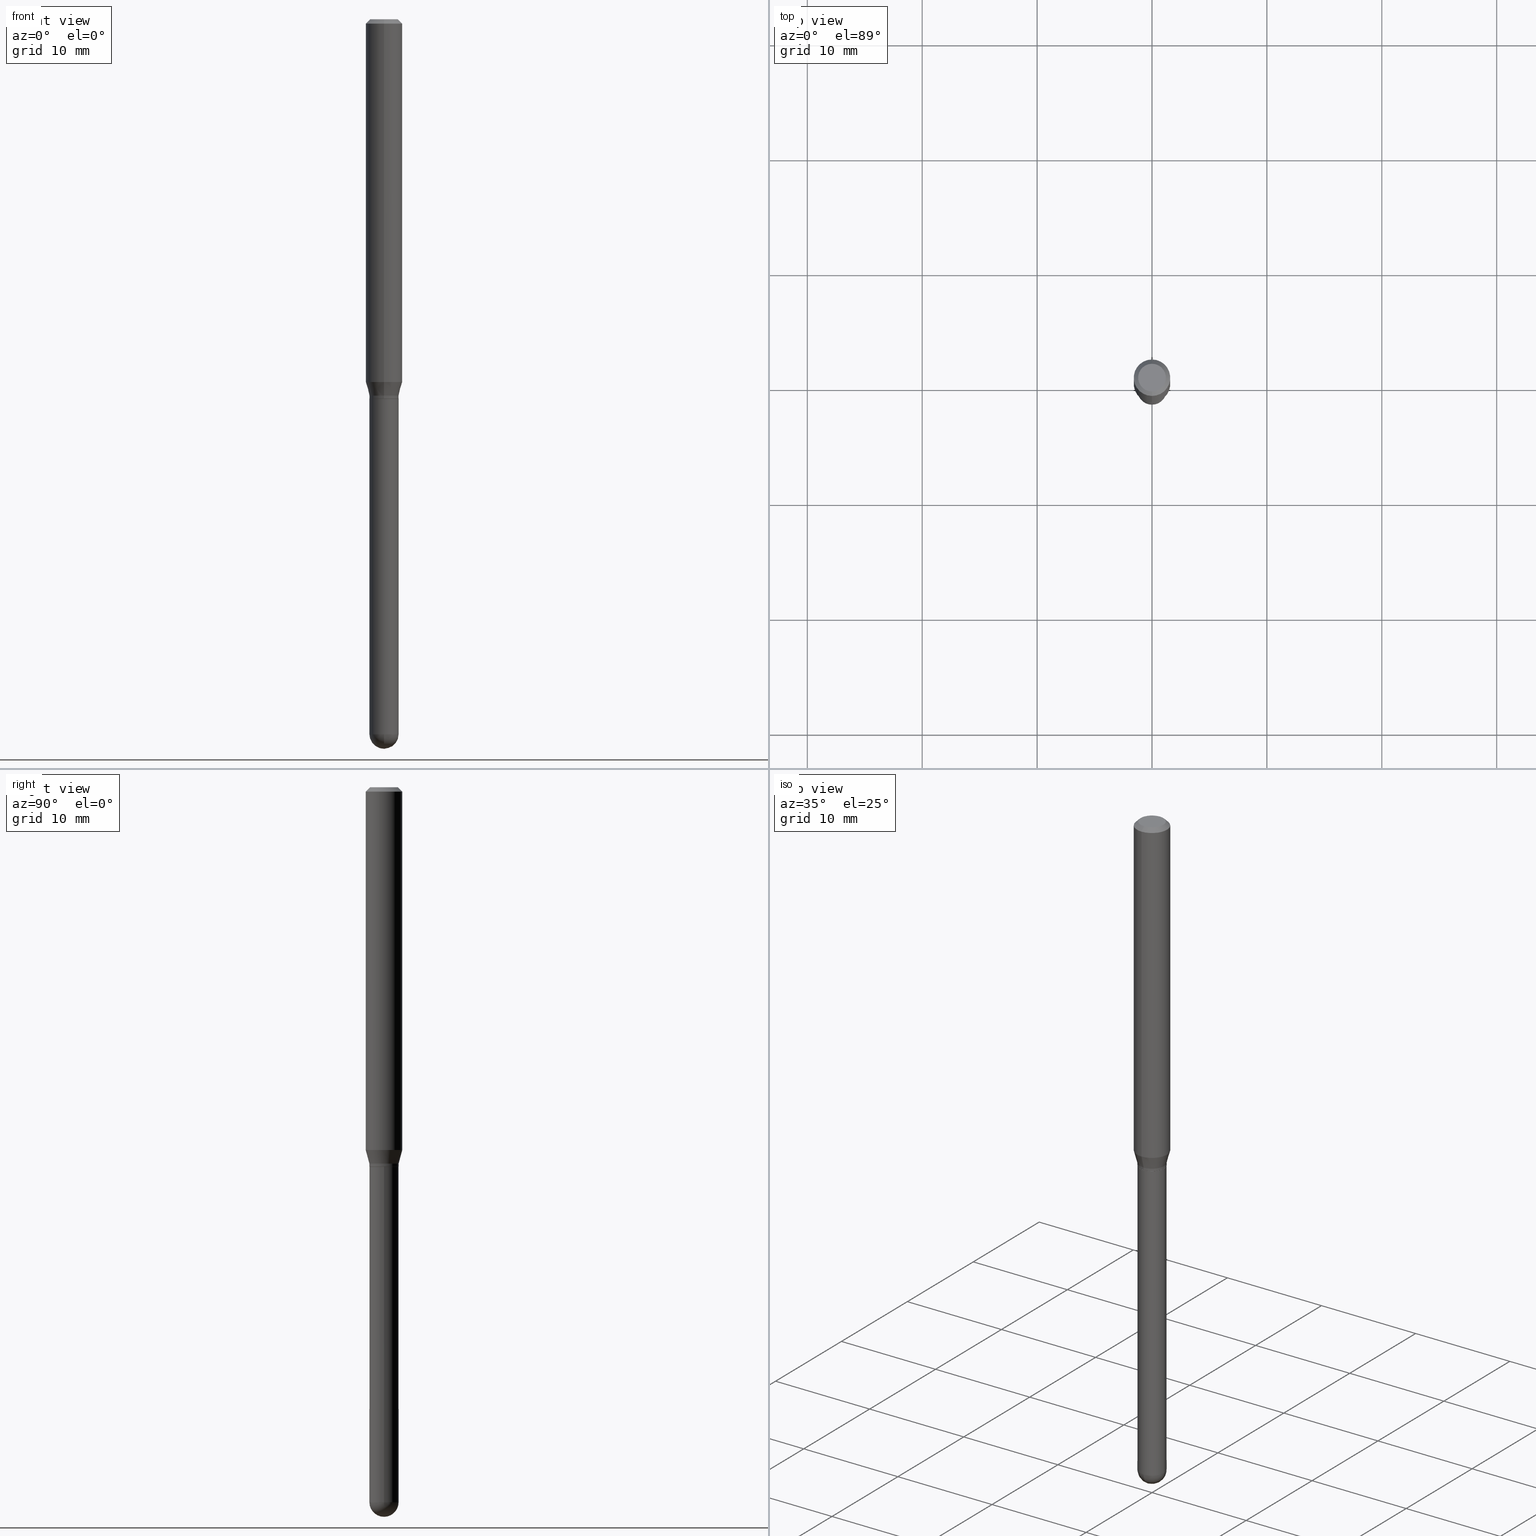
[diagram: canonical four-view strip — front | top / right | iso, engineering-drawing reading convention]
A machine part, canonical four-view strip (front | top / right | iso — engineering-drawing reading convention). The complete STEP part file that produces these views, byte-faithful:
ISO-10303-21;
HEADER;
FILE_DESCRIPTION (( 'STEP AP203' ),
    '1' );
FILE_NAME ('01578.STEP',
    '2024-03-07T19:41:37',
    ( '' ),
    ( '' ),
    'SwSTEP 2.0',
    'SolidWorks 2023',
    '' );
FILE_SCHEMA (( 'CONFIG_CONTROL_DESIGN' ));
ENDSEC;

DATA;
#1 = ADVANCED_FACE ( 'NONE', ( #176 ), #250, .T. ) ;
#2 = CARTESIAN_POINT ( 'NONE',  ( -3.491481338843128425E-16, -0.04999999999999992645, 1.745687588716103745E-16 ) ) ;
#3 = EDGE_LOOP ( 'NONE', ( #430, #246, #196, #200, #5 ) ) ;
#4 = CARTESIAN_POINT ( 'NONE',  ( 3.840629472727447874E-16, 0.04749999999999999362, -1.747056831868805136E-16 ) ) ;
#5 = ORIENTED_EDGE ( 'NONE', *, *, #476, .F. ) ;
#6 = AXIS2_PLACEMENT_3D ( 'NONE', #162, #241, #195 ) ;
#7 = LINE ( 'NONE', #128, #351 ) ;
#8 = VERTEX_POINT ( 'NONE', #127 ) ;
#9 = VECTOR ( 'NONE', #153, 39.37007874015748143 ) ;
#10 = CALENDAR_DATE ( 2024, 7, 3 ) ;
#11 = EDGE_CURVE ( 'NONE', #123, #112, #180, .T. ) ;
#12 = PERSON_AND_ORGANIZATION ( #47, #177 ) ;
#13 = DIRECTION ( 'NONE',  ( 1.000000000000000000, -6.982962677686265922E-15, 4.876176775795936353E-29 ) ) ;
#14 = ORIENTED_EDGE ( 'NONE', *, *, #450, .F. ) ;
#15 = DATE_AND_TIME ( #374, #415 ) ;
#16 = DIRECTION ( 'NONE',  ( -2.445468806185136597E-29, 3.491481338843145583E-15, 1.000000000000000000 ) ) ;
#17 = PERSON_AND_ORGANIZATION ( #47, #177 ) ;
#18 = DIRECTION ( 'NONE',  ( -6.982962677686266711E-15, -1.000000000000000000, 3.491375177432212419E-15 ) ) ;
#19 = DIRECTION ( 'NONE',  ( 6.982962677686265922E-15, 1.000000000000000000, -3.483106191921935554E-15 ) ) ;
#20 = ORIENTED_EDGE ( 'NONE', *, *, #477, .F. ) ;
#21 = EDGE_CURVE ( 'NONE', #209, #169, #505, .T. ) ;
#22 = EDGE_CURVE ( 'NONE', #109, #137, #286, .T. ) ;
#23 = DIRECTION ( 'NONE',  ( -2.445542938302172429E-29, 3.491375177432212419E-15, 1.000000000000000000 ) ) ;
#24 = CONICAL_SURFACE ( 'NONE', #331, 0.06250000000000000000, 0.7853981633974483900 ) ;
#25 = DIRECTION ( 'NONE',  ( 1.839019923739598738E-15, 0.2588190451025247363, 0.9659258262890673130 ) ) ;
#26 = DIRECTION ( 'NONE',  ( 2.445542938302172429E-29, -3.491375177432212419E-15, -1.000000000000000000 ) ) ;
#27 = CARTESIAN_POINT ( 'NONE',  ( 3.552713678800495210E-16, 0.04999999999999992645, -1.745687588716103745E-16 ) ) ;
#28 = EDGE_CURVE ( 'NONE', #428, #8, #486, .T. ) ;
#29 = CLOSED_SHELL ( 'NONE', ( #193, #491, #252, #167, #154, #248, #60, #405, #379, #272, #178, #100 ) ) ;
#30 = AXIS2_PLACEMENT_3D ( 'NONE', #391, #393, #313 ) ;
#31 = DIRECTION ( 'NONE',  ( 2.445542938302172429E-29, -3.491375177432212419E-15, -1.000000000000000000 ) ) ;
#32 = ORIENTED_EDGE ( 'NONE', *, *, #464, .T. ) ;
#33 = DIRECTION ( 'NONE',  ( -2.445468806185136597E-29, 3.491481338843145583E-15, 1.000000000000000000 ) ) ;
#34 = CC_DESIGN_PERSON_AND_ORGANIZATION_ASSIGNMENT ( #292, #136, ( #83 ) ) ;
#35 = ORIENTED_EDGE ( 'NONE', *, *, #157, .F. ) ;
#36 = LINE ( 'NONE', #74, #238 ) ;
#37 = ORIENTED_EDGE ( 'NONE', *, *, #458, .T. ) ;
#38 = CIRCLE ( 'NONE', #346, 0.05000000000000000971 ) ;
#39 = EDGE_CURVE ( 'NONE', #357, #280, #395, .T. ) ;
#40 = DIRECTION ( 'NONE',  ( -6.982962677686265922E-15, -1.000000000000000000, 4.370956789862821150E-15 ) ) ;
#41 = VERTEX_POINT ( 'NONE', #85 ) ;
#42 = APPROVAL_STATUS ( 'not_yet_approved' ) ;
#43 = ORIENTED_EDGE ( 'NONE', *, *, #22, .F. ) ;
#44 = APPROVAL_PERSON_ORGANIZATION ( #17, #223, #219 ) ;
#45 = MANIFOLD_SOLID_BREP ( 'Body-Move/Copy2[1]', #494 ) ;
#46 = PERSON_AND_ORGANIZATION_ROLE ( 'design_supplier' ) ;
#47 = PERSON ( 'UNSPECIFIED', 'UNSPECIFIED', 'UNSPECIFIED', ('UNSPECIFIED'), ('UNSPECIFIED'), ('UNSPECIFIED') ) ;
#48 = DIRECTION ( 'NONE',  ( 2.438088387897960049E-29, -3.491481338843145188E-15, -1.000000000000000000 ) ) ;
#49 = AXIS2_PLACEMENT_3D ( 'NONE', #350, #23, #229 ) ;
#50 = COORDINATED_UNIVERSAL_TIME_OFFSET ( 5, 0, .BEHIND. ) ;
#51 = EDGE_LOOP ( 'NONE', ( #20, #419, #473, #404 ) ) ;
#52 = COORDINATED_UNIVERSAL_TIME_OFFSET ( 5, 0, .BEHIND. ) ;
#53 = CARTESIAN_POINT ( 'NONE',  ( -3.456566525454384288E-16, -0.04950000000000454731, -1.299999999999999822 ) ) ;
#54 = CC_DESIGN_PERSON_AND_ORGANIZATION_ASSIGNMENT ( #440, #46, ( #336 ) ) ;
#55 = APPROVAL_ROLE ( '' ) ;
#56 = CARTESIAN_POINT ( 'NONE',  ( 5.987122743707687383E-29, -8.560252514161443770E-15, -2.450000000000000178 ) ) ;
#57 = CARTESIAN_POINT ( 'NONE',  ( 3.179205819792823625E-29, -4.538787730661875751E-15, -1.300000000000000044 ) ) ;
#58 = DIRECTION ( 'NONE',  ( -2.445468806185136597E-29, 3.491481338843145583E-15, 1.000000000000000000 ) ) ;
#59 = EDGE_CURVE ( 'NONE', #280, #357, #194, .T. ) ;
#60 = ADVANCED_FACE ( 'NONE', ( #92 ), #411, .T. ) ;
#61 = FACE_OUTER_BOUND ( 'NONE', #314, .T. ) ;
#62 = ORIENTED_EDGE ( 'NONE', *, *, #226, .T. ) ;
#63 = DATE_AND_TIME ( #454, #165 ) ;
#64 = CARTESIAN_POINT ( 'NONE',  ( 3.668314407453261236E-31, -5.237062766148322204E-17, -0.01500000000000000812 ) ) ;
#65 = CONICAL_SURFACE ( 'NONE', #203, 0.06250000000000000000, 0.7853981633974483900 ) ;
#66 = DIRECTION ( 'NONE',  ( -6.982962677686265922E-15, -1.000000000000000000, 3.491375177432212419E-15 ) ) ;
#67 = DIRECTION ( 'NONE',  ( -1.807323732225328562E-15, -0.2588190451025179639, 0.9659258262890690894 ) ) ;
#68 = AXIS2_PLACEMENT_3D ( 'NONE', #372, #377, #254 ) ;
#69 = ORIENTED_EDGE ( 'NONE', *, *, #76, .T. ) ;
#70 = CARTESIAN_POINT ( 'NONE',  ( 3.154750390409803087E-29, -4.503873978887554297E-15, -1.290000000000000258 ) ) ;
#71 = ORIENTED_EDGE ( 'NONE', *, *, #59, .T. ) ;
#72 = CARTESIAN_POINT ( 'NONE',  ( 5.987122743707687383E-29, -8.560252514161443770E-15, -2.450000000000000178 ) ) ;
#73 = EDGE_LOOP ( 'NONE', ( #230, #198, #367, #345 ) ) ;
#74 = CARTESIAN_POINT ( 'NONE',  ( 3.517186542012813602E-16, 0.04949999999999546429, -1.300000000000000266 ) ) ;
#75 = ORIENTED_EDGE ( 'NONE', *, *, #281, .T. ) ;
#76 = EDGE_CURVE ( 'NONE', #41, #107, #294, .T. ) ;
#77 = APPLICATION_CONTEXT ( 'configuration controlled 3d designs of mechanical parts and assemblies' ) ;
#78 = DIRECTION ( 'NONE',  ( 1.000000000000000000, -6.982962677686274599E-15, 0.000000000000000000 ) ) ;
#79 = EDGE_LOOP ( 'NONE', ( #512, #71 ) ) ;
#80 = CONICAL_SURFACE ( 'NONE', #30, 0.04999999999999965583, 0.2617993877991500740 ) ;
#81 = CARTESIAN_POINT ( 'NONE',  ( 5.987122743707687383E-29, -8.560252514161443770E-15, -2.450000000000000178 ) ) ;
#82 = ORIENTED_EDGE ( 'NONE', *, *, #174, .T. ) ;
#83 = PRODUCT_DEFINITION ( 'UNKNOWN', '', #336, #131 ) ;
#84 = DIRECTION ( 'NONE',  ( 1.000000000000000000, -6.982962677686265922E-15, 4.876176775795936353E-29 ) ) ;
#85 = CARTESIAN_POINT ( 'NONE',  ( 4.440892098500930859E-16, 0.06249999999999567707, -1.243349364905388388 ) ) ;
#86 = AXIS2_PLACEMENT_3D ( 'NONE', #474, #436, #78 ) ;
#87 = LINE ( 'NONE', #337, #231 ) ;
#88 = ADVANCED_FACE ( 'NONE', ( #373 ), #341, .T. ) ;
#89 = AXIS2_PLACEMENT_3D ( 'NONE', #309, #144, #388 ) ;
#90 = DIRECTION ( 'NONE',  ( -2.445468806185136597E-29, 3.491481338843145583E-15, 1.000000000000000000 ) ) ;
#91 = PRODUCT ( '01578', '01578', '', ( #482 ) ) ;
#92 = FACE_OUTER_BOUND ( 'NONE', #385, .T. ) ;
#93 = CARTESIAN_POINT ( 'NONE',  ( 3.491481338843450872E-16, 0.04999999999999546474, -1.300000000000000711 ) ) ;
#94 = DATE_TIME_ROLE ( 'creation_date' ) ;
#95 = DIRECTION ( 'NONE',  ( -6.982962677686266711E-15, -1.000000000000000000, 3.491375177432212419E-15 ) ) ;
#96 = VECTOR ( 'NONE', #152, 39.37007874015748143 ) ;
#97 = CARTESIAN_POINT ( 'NONE',  ( 3.179205819792823625E-29, -4.538787730661875751E-15, -1.300000000000000044 ) ) ;
#98 = ORIENTED_EDGE ( 'NONE', *, *, #11, .T. ) ;
#99 = CARTESIAN_POINT ( 'NONE',  ( -4.364351673553610517E-16, -0.06250000000000431599, -1.243349364905387722 ) ) ;
#100 = ADVANCED_FACE ( 'NONE', ( #417 ), #257, .T. ) ;
#101 = ORIENTED_EDGE ( 'NONE', *, *, #28, .F. ) ;
#102 = LOCAL_TIME ( 14, 41, 37.00000000000000000, #301 ) ;
#103 = DIRECTION ( 'NONE',  ( -7.105427357601001070E-15, -1.000000000000000000, 0.000000000000000000 ) ) ;
#104 = CARTESIAN_POINT ( 'NONE',  ( -4.364351673553916201E-16, -0.06250000000000000000, 2.182109485895132762E-16 ) ) ;
#105 = APPROVAL ( #42, 'UNSPECIFIED' ) ;
#106 = AXIS2_PLACEMENT_3D ( 'NONE', #57, #179, #409 ) ;
#107 = VERTEX_POINT ( 'NONE', #247 ) ;
#108 = LINE ( 'NONE', #317, #487 ) ;
#109 = VERTEX_POINT ( 'NONE', #53 ) ;
#110 = CARTESIAN_POINT ( 'NONE',  ( 3.668314407453261236E-31, -5.237062766148322204E-17, -0.01500000000000000812 ) ) ;
#111 = CIRCLE ( 'NONE', #271, 0.04999999999999999584 ) ;
#112 = VERTEX_POINT ( 'NONE', #182 ) ;
#113 = EDGE_CURVE ( 'NONE', #234, #268, #87, .T. ) ;
#114 = SPHERICAL_SURFACE ( 'NONE', #311, 0.05000000000000000971 ) ;
#115 = ORIENTED_EDGE ( 'NONE', *, *, #149, .T. ) ;
#116 = AXIS2_PLACEMENT_3D ( 'NONE', #72, #199, #276 ) ;
#117 = DIRECTION ( 'NONE',  ( -2.445542938302172429E-29, 3.491375177432212419E-15, 1.000000000000000000 ) ) ;
#118 = ORIENTED_EDGE ( 'NONE', *, *, #298, .F. ) ;
#119 = CARTESIAN_POINT ( 'NONE',  ( 3.040664259186862585E-29, -4.340999109506777634E-15, -1.243349364905387944 ) ) ;
#120 = ORIENTED_EDGE ( 'NONE', *, *, #125, .F. ) ;
#121 =( GEOMETRIC_REPRESENTATION_CONTEXT ( 3 ) GLOBAL_UNCERTAINTY_ASSIGNED_CONTEXT ( ( #258 ) ) GLOBAL_UNIT_ASSIGNED_CONTEXT ( ( #335, #448, #139 ) ) REPRESENTATION_CONTEXT ( 'NONE', 'WORKASPACE' ) );
#122 = CARTESIAN_POINT ( 'NONE',  ( 5.991398575153583765E-29, -8.554129280165706697E-15, -2.449999999999999734 ) ) ;
#123 = VERTEX_POINT ( 'NONE', #293 ) ;
#124 = VECTOR ( 'NONE', #212, 39.37007874015748143 ) ;
#125 = EDGE_CURVE ( 'NONE', #137, #109, #361, .T. ) ;
#126 = DATE_AND_TIME ( #299, #191 ) ;
#127 = CARTESIAN_POINT ( 'NONE',  ( -3.552713678799901099E-16, -0.05000000000000856537, -2.449999999999999734 ) ) ;
#128 = CARTESIAN_POINT ( 'NONE',  ( 4.364351673553919652E-16, 0.06249999999999995143, -0.01500000000000022669 ) ) ;
#129 = CARTESIAN_POINT ( 'NONE',  ( 3.491481338843731903E-16, 0.04999999999999144018, -2.450000000000000178 ) ) ;
#130 = APPROVAL ( #408, 'UNSPECIFIED' ) ;
#131 = DESIGN_CONTEXT ( 'detailed design', #77, 'design' ) ;
#132 = PERSON_AND_ORGANIZATION_ROLE ( 'classification_officer' ) ;
#133 = DIRECTION ( 'NONE',  ( -6.982962677686265922E-15, -1.000000000000000000, 5.463695987328504349E-15 ) ) ;
#134 = PRODUCT_RELATED_PRODUCT_CATEGORY ( 'detail', '', ( #91 ) ) ;
#135 = AXIS2_PLACEMENT_3D ( 'NONE', #511, #235, #155 ) ;
#136 = PERSON_AND_ORGANIZATION_ROLE ( 'creator' ) ;
#137 = VERTEX_POINT ( 'NONE', #338 ) ;
#138 = ADVANCED_FACE ( 'NONE', ( #488 ), #381, .F. ) ;
#139 =( NAMED_UNIT ( * ) SI_UNIT ( $, .STERADIAN. ) SOLID_ANGLE_UNIT ( ) );
#140 = CARTESIAN_POINT ( 'NONE',  ( 2.168062406762227384E-46, -3.095230572949476601E-32, -8.865362258850433264E-18 ) ) ;
#141 = CC_DESIGN_APPROVAL ( #130, ( #83 ) ) ;
#142 = DIRECTION ( 'NONE',  ( -2.445542938302172429E-29, 3.491375177432212419E-15, 1.000000000000000000 ) ) ;
#143 = CIRCLE ( 'NONE', #116, 0.05000000000000000971 ) ;
#144 = DIRECTION ( 'NONE',  ( -2.445542938302171869E-29, 3.491375177432212419E-15, 1.000000000000000000 ) ) ;
#145 = VERTEX_POINT ( 'NONE', #129 ) ;
#146 = CARTESIAN_POINT ( 'NONE',  ( 5.987122743707687383E-29, -8.560252514161443770E-15, -2.450000000000000178 ) ) ;
#147 = CC_DESIGN_SECURITY_CLASSIFICATION ( #228, ( #336 ) ) ;
#148 = DIRECTION ( 'NONE',  ( 1.000000000000000000, -6.982962677686255667E-15, 0.000000000000000000 ) ) ;
#149 = EDGE_CURVE ( 'NONE', #280, #402, #424, .T. ) ;
#150 = ORIENTED_EDGE ( 'NONE', *, *, #218, .T. ) ;
#151 = DATE_TIME_ROLE ( 'classification_date' ) ;
#152 = DIRECTION ( 'NONE',  ( -2.445542938302172429E-29, 3.491375177432212419E-15, 1.000000000000000000 ) ) ;
#153 = DIRECTION ( 'NONE',  ( -2.445468806185136877E-29, 3.491481338843145188E-15, 1.000000000000000000 ) ) ;
#154 = ADVANCED_FACE ( 'NONE', ( #465 ), #316, .T. ) ;
#155 = DIRECTION ( 'NONE',  ( 6.982962677686265922E-15, 1.000000000000000000, -3.491375177432212419E-15 ) ) ;
#156 = ORIENTED_EDGE ( 'NONE', *, *, #240, .F. ) ;
#157 = EDGE_CURVE ( 'NONE', #160, #402, #183, .T. ) ;
#158 = DIRECTION ( 'NONE',  ( -2.445542938302172429E-29, 3.491375177432212419E-15, 1.000000000000000000 ) ) ;
#159 = AXIS2_PLACEMENT_3D ( 'NONE', #380, #16, #13 ) ;
#160 = VERTEX_POINT ( 'NONE', #99 ) ;
#161 = CIRCLE ( 'NONE', #429, 0.06250000000000000000 ) ;
#162 = CARTESIAN_POINT ( 'NONE',  ( 3.179205819792823625E-29, -4.538787730661875751E-15, -1.300000000000000044 ) ) ;
#163 = ORIENTED_EDGE ( 'NONE', *, *, #464, .F. ) ;
#164 = PLANE ( 'NONE',  #135 ) ;
#165 = LOCAL_TIME ( 14, 41, 37.00000000000000000, #423 ) ;
#166 = ORIENTED_EDGE ( 'NONE', *, *, #305, .T. ) ;
#167 = ADVANCED_FACE ( 'NONE', ( #192 ), #267, .T. ) ;
#168 = CARTESIAN_POINT ( 'NONE',  ( 0.000000000000000000, 0.000000000000000000, 0.000000000000000000 ) ) ;
#169 = VERTEX_POINT ( 'NONE', #302 ) ;
#170 = AXIS2_PLACEMENT_3D ( 'NONE', #443, #296, #376 ) ;
#171 = CONICAL_SURFACE ( 'NONE', #431, 0.04950000000000000233, 0.7853981633980202659 ) ;
#172 = DATE_AND_TIME ( #10, #383 ) ;
#173 = DIRECTION ( 'NONE',  ( -2.445542938302172429E-29, 3.491375177432212419E-15, 1.000000000000000000 ) ) ;
#174 = EDGE_CURVE ( 'NONE', #112, #160, #420, .T. ) ;
#175 = APPROVAL_ROLE ( '' ) ;
#176 = FACE_OUTER_BOUND ( 'NONE', #467, .T. ) ;
#177 = ORGANIZATION ( 'UNSPECIFIED', 'UNSPECIFIED', '' ) ;
#178 = ADVANCED_FACE ( 'NONE', ( #451 ), #171, .T. ) ;
#179 = DIRECTION ( 'NONE',  ( -2.445542938302172429E-29, 3.491375177432212419E-15, 1.000000000000000000 ) ) ;
#180 = CIRCLE ( 'NONE', #315, 0.04999999999999965583 ) ;
#181 = APPLICATION_PROTOCOL_DEFINITION ( 'international standard', 'config_control_design', 1994, #291 ) ;
#182 = CARTESIAN_POINT ( 'NONE',  ( -3.491481338842793159E-16, -0.05000000000000415917, -1.289999999999999813 ) ) ;
#183 = LINE ( 'NONE', #104, #96 ) ;
#184 = EDGE_CURVE ( 'NONE', #109, #169, #384, .T. ) ;
#185 = APPROVAL_DATE_TIME ( #349, #223 ) ;
#186 = CARTESIAN_POINT ( 'NONE',  ( 0.05000000000000000278, -4.888073874380404052E-15, -1.300000000000000266 ) ) ;
#187 = EDGE_LOOP ( 'NONE', ( #43, #120 ) ) ;
#188 = AXIS2_PLACEMENT_3D ( 'NONE', #499, #189, #227 ) ;
#189 = DIRECTION ( 'NONE',  ( -2.445542938302172429E-29, 3.491375177432212419E-15, 1.000000000000000000 ) ) ;
#190 = CARTESIAN_POINT ( 'NONE',  ( -0.05000000000000000278, -6.191256142450848298E-15, -1.300000000000000266 ) ) ;
#191 = LOCAL_TIME ( 14, 41, 37.00000000000000000, #489 ) ;
#192 = FACE_OUTER_BOUND ( 'NONE', #327, .T. ) ;
#193 = ADVANCED_FACE ( 'NONE', ( #61 ), #352, .T. ) ;
#194 = CIRCLE ( 'NONE', #303, 0.04749999999999999362 ) ;
#195 = DIRECTION ( 'NONE',  ( -6.982962677686265922E-15, -1.000000000000000000, 5.518884835685379881E-15 ) ) ;
#196 = ORIENTED_EDGE ( 'NONE', *, *, #240, .T. ) ;
#197 = DIRECTION ( 'NONE',  ( 6.982962677686265133E-15, 1.000000000000000000, -5.463695987328524859E-15 ) ) ;
#198 = ORIENTED_EDGE ( 'NONE', *, *, #477, .T. ) ;
#199 = DIRECTION ( 'NONE',  ( 1.000000000000000000, -6.982962677686265922E-15, 4.883557194083112340E-29 ) ) ;
#200 = ORIENTED_EDGE ( 'NONE', *, *, #113, .T. ) ;
#201 = FACE_OUTER_BOUND ( 'NONE', #73, .T. ) ;
#202 = EDGE_LOOP ( 'NONE', ( #500, #115, #270, #480 ) ) ;
#203 = AXIS2_PLACEMENT_3D ( 'NONE', #468, #31, #273 ) ;
#204 = DIRECTION ( 'NONE',  ( -6.982962677686265922E-15, -1.000000000000000000, 3.483106191921935554E-15 ) ) ;
#205 = CC_DESIGN_PERSON_AND_ORGANIZATION_ASSIGNMENT ( #256, #444, ( #91 ) ) ;
#206 = ORIENTED_EDGE ( 'NONE', *, *, #368, .F. ) ;
#207 = APPROVAL_DATE_TIME ( #172, #105 ) ;
#208 = AXIS2_PLACEMENT_3D ( 'NONE', #168, #90, #84 ) ;
#209 = VERTEX_POINT ( 'NONE', #261 ) ;
#210 = DIRECTION ( 'NONE',  ( -6.982962677686267499E-15, -1.000000000000000000, 3.491375177432212814E-15 ) ) ;
#211 = VECTOR ( 'NONE', #220, 39.37007874015748854 ) ;
#212 = DIRECTION ( 'NONE',  ( -2.445542938302172429E-29, 3.491375177432212419E-15, 1.000000000000000000 ) ) ;
#213 = LENGTH_MEASURE_WITH_UNIT ( LENGTH_MEASURE( 0.02539999999999999897 ), #366 );
#214 = DIRECTION ( 'NONE',  ( -2.445542938302172429E-29, 3.491375177432212419E-15, 1.000000000000000000 ) ) ;
#215 = CARTESIAN_POINT ( 'NONE',  ( 6.111534099739893301E-29, -8.731764964105732690E-15, -2.500000000000000000 ) ) ;
#216 = DIRECTION ( 'NONE',  ( -2.445542938302172429E-29, 3.491375177432212419E-15, 1.000000000000000000 ) ) ;
#217 = DIRECTION ( 'NONE',  ( -1.000000000000000000, 6.982962677686265133E-15, -4.883557194083112340E-29 ) ) ;
#218 = EDGE_CURVE ( 'NONE', #123, #41, #108, .T. ) ;
#219 = APPROVAL_ROLE ( '' ) ;
#220 = DIRECTION ( 'NONE',  ( -4.937700262167370586E-15, -0.7071067811869493624, 0.7071067811861454500 ) ) ;
#221 = CARTESIAN_POINT ( 'NONE',  ( 5.991398575153583765E-29, -8.554129280165706697E-15, -2.449999999999999734 ) ) ;
#222 = VERTEX_POINT ( 'NONE', #190 ) ;
#223 = APPROVAL ( #503, 'UNSPECIFIED' ) ;
#224 = AXIS2_PLACEMENT_3D ( 'NONE', #110, #282, #321 ) ;
#225 = DIRECTION ( 'NONE',  ( -2.445542938302172429E-29, 3.491375177432212419E-15, 1.000000000000000000 ) ) ;
#226 = EDGE_CURVE ( 'NONE', #169, #209, #496, .T. ) ;
#227 = DIRECTION ( 'NONE',  ( -6.982962677686265922E-15, -1.000000000000000000, 5.463695987328504349E-15 ) ) ;
#228 = SECURITY_CLASSIFICATION ( '', '', #369 ) ;
#229 = DIRECTION ( 'NONE',  ( -6.982962677686267499E-15, -1.000000000000000000, 3.491375177432212814E-15 ) ) ;
#230 = ORIENTED_EDGE ( 'NONE', *, *, #22, .T. ) ;
#231 = VECTOR ( 'NONE', #485, 39.37007874015748143 ) ;
#232 = AXIS2_PLACEMENT_3D ( 'NONE', #64, #225, #204 ) ;
#233 = DIRECTION ( 'NONE',  ( -2.445542938302172429E-29, 3.491375177432212419E-15, 1.000000000000000000 ) ) ;
#234 = VERTEX_POINT ( 'NONE', #418 ) ;
#235 = DIRECTION ( 'NONE',  ( 2.445542938302171869E-29, -3.491375177432212419E-15, -1.000000000000000000 ) ) ;
#236 = ORIENTED_EDGE ( 'NONE', *, *, #378, .F. ) ;
#237 = DIRECTION ( 'NONE',  ( 5.024295867790934632E-15, 0.7071067811869542474, 0.7071067811861405650 ) ) ;
#238 = VECTOR ( 'NONE', #237, 39.37007874015748854 ) ;
#239 = ORIENTED_EDGE ( 'NONE', *, *, #368, .T. ) ;
#240 = EDGE_CURVE ( 'NONE', #8, #234, #470, .T. ) ;
#241 = DIRECTION ( 'NONE',  ( -2.445542938302172429E-29, 3.491375177432212419E-15, 1.000000000000000000 ) ) ;
#242 = AXIS2_PLACEMENT_3D ( 'NONE', #446, #332, #133 ) ;
#243 = ORIENTED_EDGE ( 'NONE', *, *, #358, .T. ) ;
#244 = AXIS2_PLACEMENT_3D ( 'NONE', #221, #58, #148 ) ;
#245 = LINE ( 'NONE', #27, #320 ) ;
#246 = ORIENTED_EDGE ( 'NONE', *, *, #28, .T. ) ;
#247 = CARTESIAN_POINT ( 'NONE',  ( 4.440892098500930859E-16, 0.06249999999999993755, -0.01500000000000022669 ) ) ;
#248 = ADVANCED_FACE ( 'NONE', ( #347 ), #80, .T. ) ;
#249 = APPLICATION_PROTOCOL_DEFINITION ( 'international standard', 'config_control_design', 1994, #77 ) ;
#250 = SPHERICAL_SURFACE ( 'NONE', #330, 0.05000000000000000971 ) ;
#251 = AXIS2_PLACEMENT_3D ( 'NONE', #334, #214, #95 ) ;
#252 = ADVANCED_FACE ( 'NONE', ( #344 ), #24, .T. ) ;
#253 = CIRCLE ( 'NONE', #232, 0.06250000000000000000 ) ;
#254 = DIRECTION ( 'NONE',  ( 1.000000000000000000, 0.000000000000000000, 0.000000000000000000 ) ) ;
#255 = DIRECTION ( 'NONE',  ( -6.982962677686265922E-15, -1.000000000000000000, 5.518884835685379881E-15 ) ) ;
#256 = PERSON_AND_ORGANIZATION ( #47, #177 ) ;
#257 = CYLINDRICAL_SURFACE ( 'NONE', #386, 0.04999999999999992645 ) ;
#258 = UNCERTAINTY_MEASURE_WITH_UNIT (LENGTH_MEASURE( 1.000000000000000082E-05 ), #335, 'distance_accuracy_value', 'NONE');
#259 = DIRECTION ( 'NONE',  ( -6.982962677686265922E-15, -1.000000000000000000, 3.491375177432212419E-15 ) ) ;
#260 = AXIS2_PLACEMENT_3D ( 'NONE', #501, #455, #265 ) ;
#261 = CARTESIAN_POINT ( 'NONE',  ( 3.552713678800839844E-16, 0.04999999999999576311, -1.299500000000000766 ) ) ;
#262 = EDGE_LOOP ( 'NONE', ( #322, #98, #82, #118 ) ) ;
#263 = DIRECTION ( 'NONE',  ( -4.851104656540964275E-15, -0.7071067811865500152, -0.7071067811865450192 ) ) ;
#264 = CC_DESIGN_PERSON_AND_ORGANIZATION_ASSIGNMENT ( #333, #132, ( #228 ) ) ;
#265 = DIRECTION ( 'NONE',  ( -6.982962677686265133E-15, -1.000000000000000000, 5.463695987328564302E-15 ) ) ;
#266 = CIRCLE ( 'NONE', #452, 0.06250000000000000000 ) ;
#267 = CYLINDRICAL_SURFACE ( 'NONE', #275, 0.06250000000000000000 ) ;
#268 = VERTEX_POINT ( 'NONE', #186 ) ;
#269 = CARTESIAN_POINT ( 'NONE',  ( -3.456566525454384288E-16, -0.04950000000000454731, -1.299999999999999822 ) ) ;
#270 = ORIENTED_EDGE ( 'NONE', *, *, #297, .T. ) ;
#271 = AXIS2_PLACEMENT_3D ( 'NONE', #122, #326, #401 ) ;
#272 = ADVANCED_FACE ( 'NONE', ( #495 ), #427, .F. ) ;
#273 = DIRECTION ( 'NONE',  ( 6.982962677686265922E-15, 1.000000000000000000, -3.483106191921935554E-15 ) ) ;
#274 = ORIENTED_EDGE ( 'NONE', *, *, #398, .F. ) ;
#275 = AXIS2_PLACEMENT_3D ( 'NONE', #382, #142, #66 ) ;
#276 = DIRECTION ( 'NONE',  ( 6.982962677686266711E-15, 1.000000000000000000, 0.000000000000000000 ) ) ;
#277 = ORIENTED_EDGE ( 'NONE', *, *, #113, .F. ) ;
#278 = DIMENSIONAL_EXPONENTS ( 1.000000000000000000, 0.000000000000000000, 0.000000000000000000, 0.000000000000000000, 0.000000000000000000, 0.000000000000000000, 0.000000000000000000 ) ;
#279 = CARTESIAN_POINT ( 'NONE',  ( -0.04999999999999999584, -6.191256142450848298E-15, -2.449999999999999734 ) ) ;
#280 = VERTEX_POINT ( 'NONE', #306 ) ;
#281 = EDGE_CURVE ( 'NONE', #502, #8, #38, .T. ) ;
#282 = DIRECTION ( 'NONE',  ( -2.445542938302172429E-29, 3.491375177432212419E-15, 1.000000000000000000 ) ) ;
#283 = CIRCLE ( 'NONE', #478, 0.04999999999999965583 ) ;
#284 = ORIENTED_EDGE ( 'NONE', *, *, #174, .F. ) ;
#285 = CARTESIAN_POINT ( 'NONE',  ( 5.991398575153583765E-29, -8.554129280165706697E-15, -2.449999999999999734 ) ) ;
#286 = CIRCLE ( 'NONE', #463, 0.04950000000000000233 ) ;
#287 = ORIENTED_EDGE ( 'NONE', *, *, #378, .T. ) ;
#288 = CC_DESIGN_DATE_AND_TIME_ASSIGNMENT ( #126, #94, ( #83 ) ) ;
#289 = PERSON_AND_ORGANIZATION ( #47, #177 ) ;
#290 = DIRECTION ( 'NONE',  ( -6.982962677686265133E-15, -1.000000000000000000, 5.463695987328564302E-15 ) ) ;
#291 = APPLICATION_CONTEXT ( 'configuration controlled 3d designs of mechanical parts and assemblies' ) ;
#292 = PERSON_AND_ORGANIZATION ( #47, #177 ) ;
#293 = CARTESIAN_POINT ( 'NONE',  ( 3.996802888650860453E-16, 0.04999999999999514555, -1.290000000000000480 ) ) ;
#294 = LINE ( 'NONE', #300, #124 ) ;
#295 = AXIS2_PLACEMENT_3D ( 'NONE', #285, #33, #362 ) ;
#296 = DIRECTION ( 'NONE',  ( -2.445468806185136597E-29, 3.491481338843145583E-15, 1.000000000000000000 ) ) ;
#297 = EDGE_CURVE ( 'NONE', #402, #107, #253, .T. ) ;
#298 = EDGE_CURVE ( 'NONE', #41, #160, #266, .T. ) ;
#299 = CALENDAR_DATE ( 2024, 7, 3 ) ;
#300 = CARTESIAN_POINT ( 'NONE',  ( 4.440892098500625669E-16, 0.06250000000000000000, -2.182109485895132762E-16 ) ) ;
#301 = COORDINATED_UNIVERSAL_TIME_OFFSET ( 5, 0, .BEHIND. ) ;
#302 = CARTESIAN_POINT ( 'NONE',  ( -3.491481338842822248E-16, -0.05000000000000463796, -1.299500000000000099 ) ) ;
#303 = AXIS2_PLACEMENT_3D ( 'NONE', #140, #216, #18 ) ;
#304 = CIRCLE ( 'NONE', #370, 0.05000000000000000278 ) ;
#305 = EDGE_CURVE ( 'NONE', #428, #222, #506, .T. ) ;
#306 = CARTESIAN_POINT ( 'NONE',  ( -3.773273898774340269E-16, -0.04749999999999999362, 1.569749586691796317E-16 ) ) ;
#307 = EDGE_LOOP ( 'NONE', ( #287, #166, #318, #277, #37 ) ) ;
#308 = CC_DESIGN_PERSON_AND_ORGANIZATION_ASSIGNMENT ( #289, #484, ( #336 ) ) ;
#309 = CARTESIAN_POINT ( 'NONE',  ( 3.179205819792824746E-29, -4.538787730661876540E-15, -1.300000000000000266 ) ) ;
#310 = ORIENTED_EDGE ( 'NONE', *, *, #389, .T. ) ;
#311 = AXIS2_PLACEMENT_3D ( 'NONE', #81, #324, #197 ) ;
#312 = SHAPE_DEFINITION_REPRESENTATION ( #471, #453 ) ;
#313 = DIRECTION ( 'NONE',  ( -6.982962677686265133E-15, -1.000000000000000000, 5.463695987328564302E-15 ) ) ;
#314 = EDGE_LOOP ( 'NONE', ( #62, #397, #163, #274 ) ) ;
#315 = AXIS2_PLACEMENT_3D ( 'NONE', #416, #173, #290 ) ;
#316 = CONICAL_SURFACE ( 'NONE', #260, 0.04999999999999965583, 0.2617993877991500740 ) ;
#317 = CARTESIAN_POINT ( 'NONE',  ( 3.552713678800791033E-16, 0.04999999999999514555, -1.290000000000000480 ) ) ;
#318 = ORIENTED_EDGE ( 'NONE', *, *, #358, .F. ) ;
#319 = CARTESIAN_POINT ( 'NONE',  ( -0.04999999999999999584, 3.552713678800500634E-16, -2.459467545127452961E-30 ) ) ;
#320 = VECTOR ( 'NONE', #472, 39.37007874015748143 ) ;
#321 = DIRECTION ( 'NONE',  ( -6.982962677686265922E-15, -1.000000000000000000, 3.483106191921935554E-15 ) ) ;
#322 = ORIENTED_EDGE ( 'NONE', *, *, #218, .F. ) ;
#323 = CIRCLE ( 'NONE', #295, 0.04999999999999999584 ) ;
#324 = DIRECTION ( 'NONE',  ( -1.000000000000000000, 6.982962677686265133E-15, -4.883557194083112340E-29 ) ) ;
#325 = ORIENTED_EDGE ( 'NONE', *, *, #149, .F. ) ;
#326 = DIRECTION ( 'NONE',  ( -2.445468806185136597E-29, 3.491481338843145583E-15, 1.000000000000000000 ) ) ;
#327 = EDGE_LOOP ( 'NONE', ( #360, #69, #355, #35 ) ) ;
#328 = FACE_OUTER_BOUND ( 'NONE', #439, .T. ) ;
#329 = ORIENTED_EDGE ( 'NONE', *, *, #508, .T. ) ;
#330 = AXIS2_PLACEMENT_3D ( 'NONE', #56, #217, #490 ) ;
#331 = AXIS2_PLACEMENT_3D ( 'NONE', #462, #26, #19 ) ;
#332 = DIRECTION ( 'NONE',  ( -2.445542938302172429E-29, 3.491375177432212419E-15, 1.000000000000000000 ) ) ;
#333 = PERSON_AND_ORGANIZATION ( #47, #177 ) ;
#334 = CARTESIAN_POINT ( 'NONE',  ( 2.168062406762227384E-46, -3.095230572949476601E-32, -8.865362258850433264E-18 ) ) ;
#335 =( CONVERSION_BASED_UNIT ( 'INCH', #213 ) LENGTH_UNIT ( ) NAMED_UNIT ( #278 ) );
#336 = PRODUCT_DEFINITION_FORMATION_WITH_SPECIFIED_SOURCE ( 'ANY', '', #91, .NOT_KNOWN. ) ;
#337 = CARTESIAN_POINT ( 'NONE',  ( 0.04999999999999999584, -3.491481338843132862E-16, 2.438088387897967896E-30 ) ) ;
#338 = CARTESIAN_POINT ( 'NONE',  ( 3.534950110406822532E-16, 0.04949999999999546429, -1.300000000000000266 ) ) ;
#339 = VECTOR ( 'NONE', #263, 39.37007874015748143 ) ;
#340 = APPROVAL_DATE_TIME ( #15, #130 ) ;
#341 = CYLINDRICAL_SURFACE ( 'NONE', #159, 0.04999999999999999584 ) ;
#342 = CARTESIAN_POINT ( 'NONE',  ( -3.491481338842793159E-16, -0.05000000000000415917, -1.289999999999999813 ) ) ;
#343 = CC_DESIGN_APPROVAL ( #223, ( #228 ) ) ;
#344 = FACE_OUTER_BOUND ( 'NONE', #202, .T. ) ;
#345 = ORIENTED_EDGE ( 'NONE', *, *, #184, .F. ) ;
#346 = AXIS2_PLACEMENT_3D ( 'NONE', #146, #457, #103 ) ;
#347 = FACE_OUTER_BOUND ( 'NONE', #262, .T. ) ;
#348 = ORIENTED_EDGE ( 'NONE', *, *, #39, .F. ) ;
#349 = DATE_AND_TIME ( #461, #102 ) ;
#350 = CARTESIAN_POINT ( 'NONE',  ( 0.000000000000000000, 0.000000000000000000, 0.000000000000000000 ) ) ;
#351 = VECTOR ( 'NONE', #414, 39.37007874015748143 ) ;
#352 = CYLINDRICAL_SURFACE ( 'NONE', #49, 0.04999999999999992645 ) ;
#353 = AXIS2_PLACEMENT_3D ( 'NONE', #447, #481, #259 ) ;
#354 = DIRECTION ( 'NONE',  ( -6.982962677686265922E-15, -1.000000000000000000, 4.370956789862821150E-15 ) ) ;
#355 = ORIENTED_EDGE ( 'NONE', *, *, #297, .F. ) ;
#356 = FACE_OUTER_BOUND ( 'NONE', #3, .T. ) ;
#357 = VERTEX_POINT ( 'NONE', #4 ) ;
#358 = EDGE_CURVE ( 'NONE', #268, #222, #304, .T. ) ;
#359 = CARTESIAN_POINT ( 'NONE',  ( -4.364351673553912750E-16, -0.06250000000000005551, -0.01499999999999979128 ) ) ;
#360 = ORIENTED_EDGE ( 'NONE', *, *, #406, .T. ) ;
#361 = CIRCLE ( 'NONE', #106, 0.04950000000000000233 ) ;
#362 = DIRECTION ( 'NONE',  ( 1.000000000000000000, -6.982962677686255667E-15, 0.000000000000000000 ) ) ;
#363 = ORIENTED_EDGE ( 'NONE', *, *, #406, .F. ) ;
#364 = CARTESIAN_POINT ( 'NONE',  ( 3.040664259186862585E-29, -4.340999109506777634E-15, -1.243349364905387944 ) ) ;
#365 = ORIENTED_EDGE ( 'NONE', *, *, #398, .T. ) ;
#366 =( LENGTH_UNIT ( ) NAMED_UNIT ( * ) SI_UNIT ( $, .METRE. ) );
#367 = ORIENTED_EDGE ( 'NONE', *, *, #226, .F. ) ;
#368 = EDGE_CURVE ( 'NONE', #502, #145, #143, .T. ) ;
#369 = SECURITY_CLASSIFICATION_LEVEL ( 'unclassified' ) ;
#370 = AXIS2_PLACEMENT_3D ( 'NONE', #509, #399, #466 ) ;
#371 = DIRECTION ( 'NONE',  ( -2.445542938302172429E-29, 3.491375177432212419E-15, 1.000000000000000000 ) ) ;
#372 = CARTESIAN_POINT ( 'NONE',  ( 0.000000000000000000, 0.000000000000000000, 0.000000000000000000 ) ) ;
#373 = FACE_OUTER_BOUND ( 'NONE', #307, .T. ) ;
#374 = CALENDAR_DATE ( 2024, 7, 3 ) ;
#375 = APPROVAL_PERSON_ORGANIZATION ( #442, #105, #175 ) ;
#376 = DIRECTION ( 'NONE',  ( 1.000000000000000000, -6.982962677686255667E-15, 0.000000000000000000 ) ) ;
#377 = DIRECTION ( 'NONE',  ( 0.000000000000000000, 0.000000000000000000, 1.000000000000000000 ) ) ;
#378 = EDGE_CURVE ( 'NONE', #145, #428, #323, .T. ) ;
#379 = ADVANCED_FACE ( 'NONE', ( #432 ), #164, .F. ) ;
#380 = CARTESIAN_POINT ( 'NONE',  ( 0.000000000000000000, 0.000000000000000000, 0.000000000000000000 ) ) ;
#381 = PLANE ( 'NONE',  #410 ) ;
#382 = CARTESIAN_POINT ( 'NONE',  ( 0.000000000000000000, 0.000000000000000000, 0.000000000000000000 ) ) ;
#383 = LOCAL_TIME ( 14, 41, 37.00000000000000000, #50 ) ;
#384 = LINE ( 'NONE', #269, #211 ) ;
#385 = EDGE_LOOP ( 'NONE', ( #456, #400, #460, #407 ) ) ;
#386 = AXIS2_PLACEMENT_3D ( 'NONE', #441, #412, #210 ) ;
#387 = CIRCLE ( 'NONE', #224, 0.06250000000000000000 ) ;
#388 = DIRECTION ( 'NONE',  ( -6.982962677686265922E-15, -1.000000000000000000, 3.491375177432212419E-15 ) ) ;
#389 = EDGE_CURVE ( 'NONE', #107, #402, #387, .T. ) ;
#390 = CC_DESIGN_DATE_AND_TIME_ASSIGNMENT ( #63, #151, ( #228 ) ) ;
#391 = CARTESIAN_POINT ( 'NONE',  ( 3.154750390409803087E-29, -4.503873978887554297E-15, -1.290000000000000258 ) ) ;
#392 = CONICAL_SURFACE ( 'NONE', #6, 0.04950000000000000233, 0.7853981633980202659 ) ;
#393 = DIRECTION ( 'NONE',  ( -2.445542938302172429E-29, 3.491375177432212419E-15, 1.000000000000000000 ) ) ;
#394 = MANIFOLD_SOLID_BREP ( 'Body-Move/Copy2[2]', #29 ) ;
#395 = CIRCLE ( 'NONE', #251, 0.04749999999999999362 ) ;
#396 = FACE_OUTER_BOUND ( 'NONE', #422, .T. ) ;
#397 = ORIENTED_EDGE ( 'NONE', *, *, #450, .T. ) ;
#398 = EDGE_CURVE ( 'NONE', #169, #112, #479, .T. ) ;
#399 = DIRECTION ( 'NONE',  ( -2.445468806185136597E-29, 3.491481338843145583E-15, 1.000000000000000000 ) ) ;
#400 = ORIENTED_EDGE ( 'NONE', *, *, #298, .T. ) ;
#401 = DIRECTION ( 'NONE',  ( 1.000000000000000000, -6.982962677686255667E-15, 0.000000000000000000 ) ) ;
#402 = VERTEX_POINT ( 'NONE', #359 ) ;
#403 = CYLINDRICAL_SURFACE ( 'NONE', #208, 0.04999999999999999584 ) ;
#404 = ORIENTED_EDGE ( 'NONE', *, *, #21, .F. ) ;
#405 = ADVANCED_FACE ( 'NONE', ( #396 ), #65, .T. ) ;
#406 = EDGE_CURVE ( 'NONE', #160, #41, #161, .T. ) ;
#407 = ORIENTED_EDGE ( 'NONE', *, *, #389, .F. ) ;
#408 = APPROVAL_STATUS ( 'not_yet_approved' ) ;
#409 = DIRECTION ( 'NONE',  ( -6.982962677686265922E-15, -1.000000000000000000, 5.518884835685379881E-15 ) ) ;
#410 = AXIS2_PLACEMENT_3D ( 'NONE', #93, #48, #483 ) ;
#411 = CYLINDRICAL_SURFACE ( 'NONE', #353, 0.06250000000000000000 ) ;
#412 = DIRECTION ( 'NONE',  ( -2.445542938302172429E-29, 3.491375177432212419E-15, 1.000000000000000000 ) ) ;
#413 = ADVANCED_FACE ( 'NONE', ( #328 ), #114, .T. ) ;
#414 = DIRECTION ( 'NONE',  ( 4.937700262164548042E-15, 0.7071067811865451302, -0.7071067811865499042 ) ) ;
#415 = LOCAL_TIME ( 14, 41, 37.00000000000000000, #52 ) ;
#416 = CARTESIAN_POINT ( 'NONE',  ( 3.154750390409803087E-29, -4.503873978887554297E-15, -1.290000000000000258 ) ) ;
#417 = FACE_OUTER_BOUND ( 'NONE', #469, .T. ) ;
#418 = CARTESIAN_POINT ( 'NONE',  ( 0.04999999999999999584, -6.895675644215211254E-15, -2.449999999999999734 ) ) ;
#419 = ORIENTED_EDGE ( 'NONE', *, *, #125, .T. ) ;
#420 = LINE ( 'NONE', #342, #445 ) ;
#421 = CIRCLE ( 'NONE', #86, 0.05000000000000000278 ) ;
#422 = EDGE_LOOP ( 'NONE', ( #325, #348, #329, #310 ) ) ;
#423 = COORDINATED_UNIVERSAL_TIME_OFFSET ( 5, 0, .BEHIND. ) ;
#424 = LINE ( 'NONE', #493, #339 ) ;
#425 = VECTOR ( 'NONE', #117, 39.37007874015748143 ) ;
#426 = DIRECTION ( 'NONE',  ( -6.982962677686265922E-15, -1.000000000000000000, 5.518884835685379881E-15 ) ) ;
#427 = PLANE ( 'NONE',  #89 ) ;
#428 = VERTEX_POINT ( 'NONE', #279 ) ;
#429 = AXIS2_PLACEMENT_3D ( 'NONE', #364, #158, #40 ) ;
#430 = ORIENTED_EDGE ( 'NONE', *, *, #305, .F. ) ;
#431 = AXIS2_PLACEMENT_3D ( 'NONE', #97, #504, #426 ) ;
#432 = FACE_OUTER_BOUND ( 'NONE', #79, .T. ) ;
#433 = ORIENTED_EDGE ( 'NONE', *, *, #11, .F. ) ;
#434 = DIRECTION ( 'NONE',  ( -6.982962677686265133E-15, -1.000000000000000000, 5.463695987328564302E-15 ) ) ;
#435 = ORIENTED_EDGE ( 'NONE', *, *, #21, .T. ) ;
#436 = DIRECTION ( 'NONE',  ( -2.445468806185136597E-29, 3.491481338843145583E-15, 1.000000000000000000 ) ) ;
#437 = ORIENTED_EDGE ( 'NONE', *, *, #281, .F. ) ;
#438 = DIRECTION ( 'NONE',  ( -2.445542938302172429E-29, 3.491375177432212419E-15, 1.000000000000000000 ) ) ;
#439 = EDGE_LOOP ( 'NONE', ( #437, #239, #507, #156 ) ) ;
#440 = PERSON_AND_ORGANIZATION ( #47, #177 ) ;
#441 = CARTESIAN_POINT ( 'NONE',  ( 0.000000000000000000, 0.000000000000000000, 0.000000000000000000 ) ) ;
#442 = PERSON_AND_ORGANIZATION ( #47, #177 ) ;
#443 = CARTESIAN_POINT ( 'NONE',  ( 5.991398575153583765E-29, -8.554129280165706697E-15, -2.449999999999999734 ) ) ;
#444 = PERSON_AND_ORGANIZATION_ROLE ( 'design_owner' ) ;
#445 = VECTOR ( 'NONE', #67, 39.37007874015748854 ) ;
#446 = CARTESIAN_POINT ( 'NONE',  ( 3.177983048323674616E-29, -4.537042043073160388E-15, -1.299500000000000544 ) ) ;
#447 = CARTESIAN_POINT ( 'NONE',  ( 0.000000000000000000, 0.000000000000000000, 0.000000000000000000 ) ) ;
#448 =( NAMED_UNIT ( * ) PLANE_ANGLE_UNIT ( ) SI_UNIT ( $, .RADIAN. ) );
#449 = CARTESIAN_POINT ( 'NONE',  ( 3.179205819792823625E-29, -4.538787730661875751E-15, -1.300000000000000044 ) ) ;
#450 = EDGE_CURVE ( 'NONE', #209, #123, #245, .T. ) ;
#451 = FACE_OUTER_BOUND ( 'NONE', #51, .T. ) ;
#452 = AXIS2_PLACEMENT_3D ( 'NONE', #119, #233, #354 ) ;
#453 = ADVANCED_BREP_SHAPE_REPRESENTATION ( '01578', ( #45, #394, #68 ), #121 ) ;
#454 = CALENDAR_DATE ( 2024, 7, 3 ) ;
#455 = DIRECTION ( 'NONE',  ( -2.445542938302172429E-29, 3.491375177432212419E-15, 1.000000000000000000 ) ) ;
#456 = ORIENTED_EDGE ( 'NONE', *, *, #76, .F. ) ;
#457 = DIRECTION ( 'NONE',  ( -1.000000000000000000, 7.105427357601001070E-15, -4.926315508542082329E-29 ) ) ;
#458 = EDGE_CURVE ( 'NONE', #234, #145, #111, .T. ) ;
#459 = APPROVAL_PERSON_ORGANIZATION ( #12, #130, #55 ) ;
#460 = ORIENTED_EDGE ( 'NONE', *, *, #157, .T. ) ;
#461 = CALENDAR_DATE ( 2024, 7, 3 ) ;
#462 = CARTESIAN_POINT ( 'NONE',  ( 3.668314407453261236E-31, -5.237062766148322204E-17, -0.01500000000000000812 ) ) ;
#463 = AXIS2_PLACEMENT_3D ( 'NONE', #449, #371, #255 ) ;
#464 = EDGE_CURVE ( 'NONE', #112, #123, #283, .T. ) ;
#465 = FACE_OUTER_BOUND ( 'NONE', #497, .T. ) ;
#466 = DIRECTION ( 'NONE',  ( 1.000000000000000000, -6.982962677686274599E-15, 0.000000000000000000 ) ) ;
#467 = EDGE_LOOP ( 'NONE', ( #206, #75, #101, #236 ) ) ;
#468 = CARTESIAN_POINT ( 'NONE',  ( 3.668314407453261236E-31, -5.237062766148322204E-17, -0.01500000000000000812 ) ) ;
#469 = EDGE_LOOP ( 'NONE', ( #14, #435, #365, #433 ) ) ;
#470 = CIRCLE ( 'NONE', #244, 0.04999999999999999584 ) ;
#471 = PRODUCT_DEFINITION_SHAPE ( 'NONE', 'NONE',  #83 ) ;
#472 = DIRECTION ( 'NONE',  ( -2.445542938302172429E-29, 3.491375177432212419E-15, 1.000000000000000000 ) ) ;
#473 = ORIENTED_EDGE ( 'NONE', *, *, #184, .T. ) ;
#474 = CARTESIAN_POINT ( 'NONE',  ( 3.179109448040678473E-29, -4.538925740496089928E-15, -1.300000000000000266 ) ) ;
#475 = ORIENTED_EDGE ( 'NONE', *, *, #476, .T. ) ;
#476 = EDGE_CURVE ( 'NONE', #222, #268, #421, .T. ) ;
#477 = EDGE_CURVE ( 'NONE', #137, #209, #36, .T. ) ;
#478 = AXIS2_PLACEMENT_3D ( 'NONE', #70, #438, #434 ) ;
#479 = LINE ( 'NONE', #2, #425 ) ;
#480 = ORIENTED_EDGE ( 'NONE', *, *, #508, .F. ) ;
#481 = DIRECTION ( 'NONE',  ( -2.445542938302172429E-29, 3.491375177432212419E-15, 1.000000000000000000 ) ) ;
#482 = MECHANICAL_CONTEXT ( 'NONE', #291, 'mechanical' ) ;
#483 = DIRECTION ( 'NONE',  ( -1.000000000000000000, 6.982962677686265922E-15, -4.876176775795935793E-29 ) ) ;
#484 = PERSON_AND_ORGANIZATION_ROLE ( 'creator' ) ;
#485 = DIRECTION ( 'NONE',  ( -2.445468806185136877E-29, 3.491481338843145188E-15, 1.000000000000000000 ) ) ;
#486 = CIRCLE ( 'NONE', #170, 0.04999999999999999584 ) ;
#487 = VECTOR ( 'NONE', #25, 39.37007874015748854 ) ;
#488 = FACE_OUTER_BOUND ( 'NONE', #510, .T. ) ;
#489 = COORDINATED_UNIVERSAL_TIME_OFFSET ( 5, 0, .BEHIND. ) ;
#490 = DIRECTION ( 'NONE',  ( 6.982962677686265133E-15, 1.000000000000000000, -5.463695987328524859E-15 ) ) ;
#491 = ADVANCED_FACE ( 'NONE', ( #201 ), #392, .T. ) ;
#492 = CC_DESIGN_APPROVAL ( #105, ( #336 ) ) ;
#493 = CARTESIAN_POINT ( 'NONE',  ( -4.287811248607203282E-16, -0.06250000000000005551, -0.01499999999999979128 ) ) ;
#494 = CLOSED_SHELL ( 'NONE', ( #88, #1, #138, #413, #498 ) ) ;
#495 = FACE_OUTER_BOUND ( 'NONE', #187, .T. ) ;
#496 = CIRCLE ( 'NONE', #188, 0.05000000000000020400 ) ;
#497 = EDGE_LOOP ( 'NONE', ( #32, #150, #363, #284 ) ) ;
#498 = ADVANCED_FACE ( 'NONE', ( #356 ), #403, .T. ) ;
#499 = CARTESIAN_POINT ( 'NONE',  ( 3.177983048323674616E-29, -4.537042043073160388E-15, -1.299500000000000544 ) ) ;
#500 = ORIENTED_EDGE ( 'NONE', *, *, #59, .F. ) ;
#501 = CARTESIAN_POINT ( 'NONE',  ( 3.154750390409803087E-29, -4.503873978887554297E-15, -1.290000000000000258 ) ) ;
#502 = VERTEX_POINT ( 'NONE', #215 ) ;
#503 = APPROVAL_STATUS ( 'not_yet_approved' ) ;
#504 = DIRECTION ( 'NONE',  ( -2.445542938302172429E-29, 3.491375177432212419E-15, 1.000000000000000000 ) ) ;
#505 = CIRCLE ( 'NONE', #242, 0.05000000000000020400 ) ;
#506 = LINE ( 'NONE', #319, #9 ) ;
#507 = ORIENTED_EDGE ( 'NONE', *, *, #458, .F. ) ;
#508 = EDGE_CURVE ( 'NONE', #357, #107, #7, .T. ) ;
#509 = CARTESIAN_POINT ( 'NONE',  ( 3.179109448040678473E-29, -4.538925740496089928E-15, -1.300000000000000266 ) ) ;
#510 = EDGE_LOOP ( 'NONE', ( #243, #475 ) ) ;
#511 = CARTESIAN_POINT ( 'NONE',  ( 3.316907271900976096E-16, 0.04749999999999999362, -1.702730020574552993E-16 ) ) ;
#512 = ORIENTED_EDGE ( 'NONE', *, *, #39, .T. ) ;
ENDSEC;
END-ISO-10303-21;
